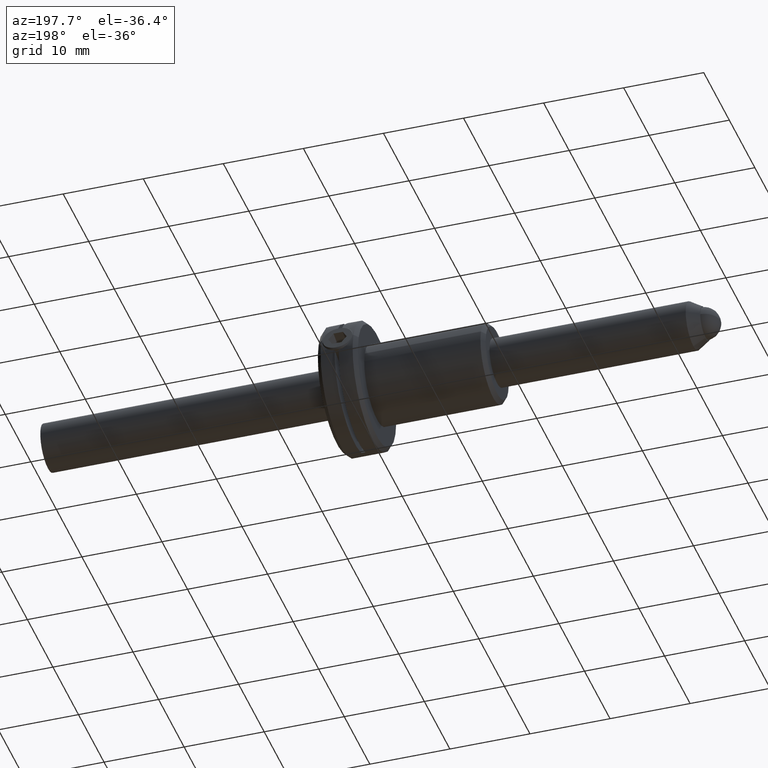
[diagram: clean part render]
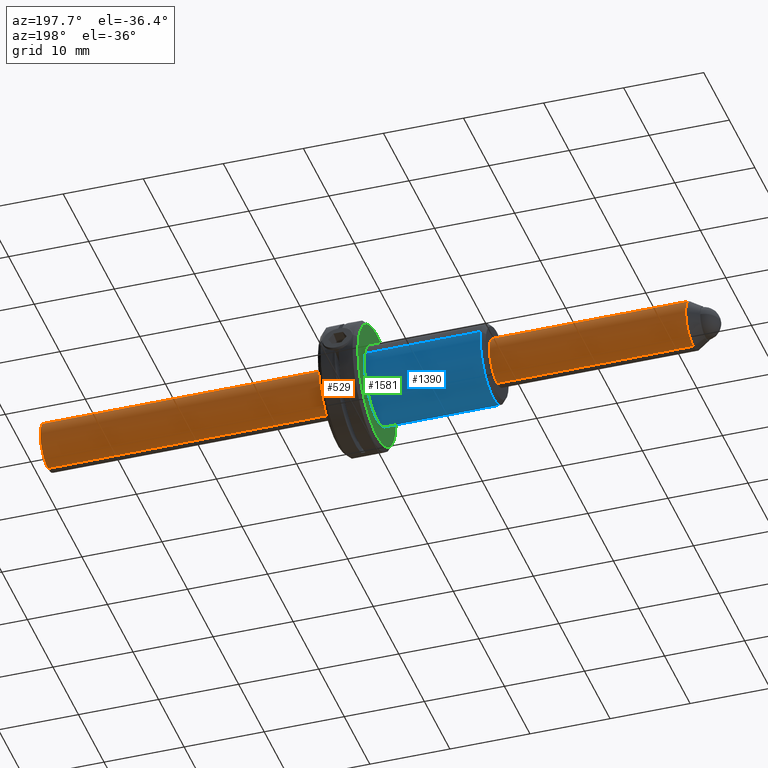
[diagram: same view with three faces highlighted in distinct colors, each labeled with its STEP entity id]
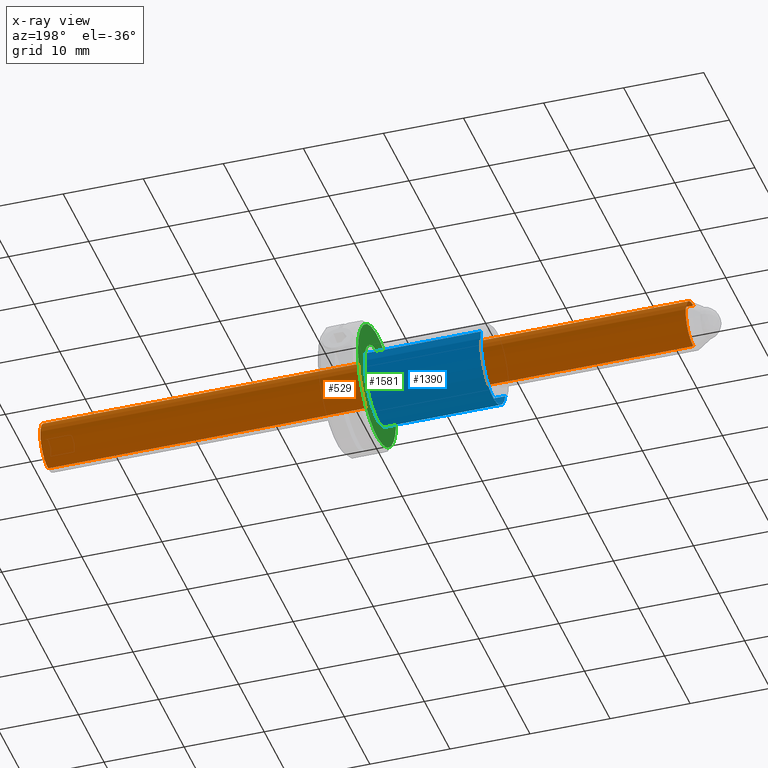
[diagram: x-ray of the same camera — body ghosted, the three highlighted faces saturated]
A machine part, auxiliary view with three faces highlighted in distinct colors.
The next image is the same camera in x-ray (body ghosted, the three faces saturated) — at least one of them is partly hidden behind the body in this view.
Their STEP definitions:

[orange] entity #529 — the highlighted cylindrical surface (edge-blend (fillet) strip) has radius 3 mm, axis along (-1, -0, -0).
#87 = VECTOR ( 'NONE', #263, 1000.000000000000000 ) ;
#198 = DIRECTION ( 'NONE',  ( -1.000000000000000000, -0.000000000000000000, -0.000000000000000000 ) ) ;
#263 = DIRECTION ( 'NONE',  ( -1.000000000000000000, -0.000000000000000000, -0.000000000000000000 ) ) ;
#426 = VERTEX_POINT ( 'NONE', #1914 ) ;
#480 = AXIS2_PLACEMENT_3D ( 'NONE', #774, #593, #1261 ) ;
#493 = ORIENTED_EDGE ( 'NONE', *, *, #1269, .F. ) ;
#499 = ORIENTED_EDGE ( 'NONE', *, *, #1294, .F. ) ;
#529 = ADVANCED_FACE ( 'NONE', ( #1344 ), #1491, .T. ) ;
#538 = VERTEX_POINT ( 'NONE', #1954 ) ;
#593 = DIRECTION ( 'NONE',  ( -1.000000000000000000, -0.000000000000000000, -0.000000000000000000 ) ) ;
#655 = DIRECTION ( 'NONE',  ( 0.000000000000000000, 0.000000000000000000, 1.000000000000000000 ) ) ;
#681 = VECTOR ( 'NONE', #198, 1000.000000000000000 ) ;
#774 = CARTESIAN_POINT ( 'NONE',  ( 41.04999999999999005, 0.000000000000000000, 0.000000000000000000 ) ) ;
#820 = ORIENTED_EDGE ( 'NONE', *, *, #1086, .T. ) ;
#847 = CIRCLE ( 'NONE', #480, 3.000000000000000000 ) ;
#982 = AXIS2_PLACEMENT_3D ( 'NONE', #1866, #1709, #655 ) ;
#1049 = DIRECTION ( 'NONE',  ( 0.000000000000000000, 0.000000000000000000, 1.000000000000000000 ) ) ;
#1086 = EDGE_CURVE ( 'NONE', #426, #538, #847, .T. ) ;
#1234 = CARTESIAN_POINT ( 'NONE',  ( -39.54999999999999716, 0.000000000000000000, -3.000000000000000000 ) ) ;
#1255 = CARTESIAN_POINT ( 'NONE',  ( -45.53911735205616651, 0.000000000000000000, 3.000000000000000000 ) ) ;
#1261 = DIRECTION ( 'NONE',  ( 0.000000000000000000, 0.000000000000000000, 1.000000000000000000 ) ) ;
#1269 = EDGE_CURVE ( 'NONE', #1637, #1546, #1949, .T. ) ;
#1294 = EDGE_CURVE ( 'NONE', #426, #1637, #1729, .T. ) ;
#1344 = FACE_OUTER_BOUND ( 'NONE', #1465, .T. ) ;
#1346 = LINE ( 'NONE', #1505, #87 ) ;
#1391 = CARTESIAN_POINT ( 'NONE',  ( -39.54999999999999716, 3.673940397442059868E-16, 3.000000000000000000 ) ) ;
#1465 = EDGE_LOOP ( 'NONE', ( #820, #1615, #493, #499 ) ) ;
#1491 = CYLINDRICAL_SURFACE ( 'NONE', #1816, 3.000000000000000000 ) ;
#1505 = CARTESIAN_POINT ( 'NONE',  ( -45.53911735205616651, 3.673940397442059868E-16, -3.000000000000000000 ) ) ;
#1530 = CARTESIAN_POINT ( 'NONE',  ( -45.53911735205616651, 0.000000000000000000, 0.000000000000000000 ) ) ;
#1546 = VERTEX_POINT ( 'NONE', #1234 ) ;
#1615 = ORIENTED_EDGE ( 'NONE', *, *, #1859, .T. ) ;
#1637 = VERTEX_POINT ( 'NONE', #1391 ) ;
#1709 = DIRECTION ( 'NONE',  ( -1.000000000000000000, -0.000000000000000000, -0.000000000000000000 ) ) ;
#1729 = LINE ( 'NONE', #1255, #681 ) ;
#1816 = AXIS2_PLACEMENT_3D ( 'NONE', #1530, #1825, #1049 ) ;
#1825 = DIRECTION ( 'NONE',  ( -1.000000000000000000, -0.000000000000000000, -0.000000000000000000 ) ) ;
#1859 = EDGE_CURVE ( 'NONE', #538, #1546, #1346, .T. ) ;
#1866 = CARTESIAN_POINT ( 'NONE',  ( -39.54999999999999716, 0.000000000000000000, 0.000000000000000000 ) ) ;
#1914 = CARTESIAN_POINT ( 'NONE',  ( 41.04999999999999005, 0.000000000000000000, 3.000000000000000000 ) ) ;
#1949 = CIRCLE ( 'NONE', #982, 3.000000000000000000 ) ;
#1954 = CARTESIAN_POINT ( 'NONE',  ( 41.04999999999999005, 3.673940397442059868E-16, -3.000000000000000000 ) ) ;

[blue] entity #1390 — the highlighted cylindrical surface (partial cylindrical patch) has radius 5 mm, axis along (-1, 0, 0).
#53 = CARTESIAN_POINT ( 'NONE',  ( -0.04999999999999709538, 4.796282854146715735, 1.412682123840400372 ) ) ;
#75 = ORIENTED_EDGE ( 'NONE', *, *, #1895, .T. ) ;
#103 = CARTESIAN_POINT ( 'NONE',  ( -0.04999999999999709538, -4.796282854146718400, -1.412682123840401704 ) ) ;
#117 = CYLINDRICAL_SURFACE ( 'NONE', #1341, 5.000000000000000000 ) ;
#209 = ORIENTED_EDGE ( 'NONE', *, *, #1018, .T. ) ;
#279 = ORIENTED_EDGE ( 'NONE', *, *, #737, .F. ) ;
#290 = CARTESIAN_POINT ( 'NONE',  ( -14.55000000000000071, -4.796282854146716623, -1.412682123840401260 ) ) ;
#424 = VECTOR ( 'NONE', #909, 1000.000000000000000 ) ;
#433 = DIRECTION ( 'NONE',  ( 0.000000000000000000, -0.9592565708293433469, -0.2825364247680801078 ) ) ;
#450 = DIRECTION ( 'NONE',  ( 1.000000000000000000, 0.000000000000000000, 0.000000000000000000 ) ) ;
#620 = CARTESIAN_POINT ( 'NONE',  ( -14.55000000000000071, 4.796282854146714847, 1.412682123840400150 ) ) ;
#626 = LINE ( 'NONE', #1676, #424 ) ;
#648 = CIRCLE ( 'NONE', #1563, 5.000000000000000000 ) ;
#657 = LINE ( 'NONE', #972, #1339 ) ;
#737 = EDGE_CURVE ( 'NONE', #1252, #1093, #657, .T. ) ;
#857 = DIRECTION ( 'NONE',  ( -1.000000000000000000, 0.000000000000000000, 0.000000000000000000 ) ) ;
#879 = CIRCLE ( 'NONE', #1786, 5.000000000000000888 ) ;
#902 = CARTESIAN_POINT ( 'NONE',  ( -0.04999999999999709538, -5.426736848533666609E-16, -7.892009290543411720E-16 ) ) ;
#909 = DIRECTION ( 'NONE',  ( -1.000000000000000000, 0.000000000000000000, 0.000000000000000000 ) ) ;
#972 = CARTESIAN_POINT ( 'NONE',  ( -32.40644179797200763, 4.796282854146715735, 1.412682123840400372 ) ) ;
#1009 = EDGE_LOOP ( 'NONE', ( #279, #209, #75, #1137 ) ) ;
#1018 = EDGE_CURVE ( 'NONE', #1252, #1832, #879, .T. ) ;
#1038 = FACE_OUTER_BOUND ( 'NONE', #1009, .T. ) ;
#1084 = DIRECTION ( 'NONE',  ( 0.000000000000000000, 0.9592565708293433469, 0.2825364247680801078 ) ) ;
#1093 = VERTEX_POINT ( 'NONE', #620 ) ;
#1137 = ORIENTED_EDGE ( 'NONE', *, *, #1514, .T. ) ;
#1145 = CARTESIAN_POINT ( 'NONE',  ( -32.40644179797200763, -5.426736848533666609E-16, -7.892009290543411720E-16 ) ) ;
#1157 = DIRECTION ( 'NONE',  ( 0.000000000000000000, -0.9592565708293433469, -0.2825364247680801078 ) ) ;
#1252 = VERTEX_POINT ( 'NONE', #53 ) ;
#1339 = VECTOR ( 'NONE', #1768, 1000.000000000000000 ) ;
#1341 = AXIS2_PLACEMENT_3D ( 'NONE', #1145, #857, #1157 ) ;
#1390 = ADVANCED_FACE ( 'NONE', ( #1038 ), #117, .T. ) ;
#1514 = EDGE_CURVE ( 'NONE', #1907, #1093, #648, .T. ) ;
#1563 = AXIS2_PLACEMENT_3D ( 'NONE', #1838, #450, #1084 ) ;
#1676 = CARTESIAN_POINT ( 'NONE',  ( -32.40644179797200763, -4.796282854146717511, -1.412682123840401482 ) ) ;
#1768 = DIRECTION ( 'NONE',  ( -1.000000000000000000, 0.000000000000000000, 0.000000000000000000 ) ) ;
#1786 = AXIS2_PLACEMENT_3D ( 'NONE', #902, #1806, #433 ) ;
#1806 = DIRECTION ( 'NONE',  ( -1.000000000000000000, 0.000000000000000000, 0.000000000000000000 ) ) ;
#1832 = VERTEX_POINT ( 'NONE', #103 ) ;
#1838 = CARTESIAN_POINT ( 'NONE',  ( -14.55000000000000071, -5.426736848533666609E-16, -7.892009290543411720E-16 ) ) ;
#1895 = EDGE_CURVE ( 'NONE', #1832, #1907, #626, .T. ) ;
#1907 = VERTEX_POINT ( 'NONE', #290 ) ;

[green] entity #1581 — the highlighted planar face has unit normal (1, 0, -0).
#53 = CARTESIAN_POINT ( 'NONE',  ( -0.04999999999999709538, 4.796282854146715735, 1.412682123840400372 ) ) ;
#89 = EDGE_CURVE ( 'NONE', #1839, #503, #324, .T. ) ;
#103 = CARTESIAN_POINT ( 'NONE',  ( -0.04999999999999709538, -4.796282854146718400, -1.412682123840401704 ) ) ;
#264 = ORIENTED_EDGE ( 'NONE', *, *, #89, .T. ) ;
#274 = DIRECTION ( 'NONE',  ( -1.000000000000000000, -0.000000000000000000, -0.000000000000000000 ) ) ;
#324 = CIRCLE ( 'NONE', #770, 7.499999999999998224 ) ;
#334 = EDGE_CURVE ( 'NONE', #503, #1839, #448, .T. ) ;
#374 = CARTESIAN_POINT ( 'NONE',  ( -0.04999999999999969746, -5.426736848533666609E-16, -7.892009290543411720E-16 ) ) ;
#398 = CIRCLE ( 'NONE', #1434, 5.000000000000000888 ) ;
#414 = DIRECTION ( 'NONE',  ( 1.000000000000000000, 0.000000000000000000, -0.000000000000000000 ) ) ;
#419 = AXIS2_PLACEMENT_3D ( 'NONE', #374, #507, #1903 ) ;
#433 = DIRECTION ( 'NONE',  ( 0.000000000000000000, -0.9592565708293433469, -0.2825364247680801078 ) ) ;
#447 = CARTESIAN_POINT ( 'NONE',  ( -0.04999999999999969746, -5.426736848533666609E-16, -7.892009290543411720E-16 ) ) ;
#448 = CIRCLE ( 'NONE', #419, 7.499999999999998224 ) ;
#503 = VERTEX_POINT ( 'NONE', #1504 ) ;
#507 = DIRECTION ( 'NONE',  ( -1.000000000000000000, -0.000000000000000000, -0.000000000000000000 ) ) ;
#594 = DIRECTION ( 'NONE',  ( -1.000000000000000000, 0.000000000000000000, 0.000000000000000000 ) ) ;
#705 = CARTESIAN_POINT ( 'NONE',  ( -0.04999999999999969746, 7.194424281220072714, 2.119023185760599226 ) ) ;
#728 = FACE_BOUND ( 'NONE', #1987, .T. ) ;
#770 = AXIS2_PLACEMENT_3D ( 'NONE', #447, #274, #1534 ) ;
#879 = CIRCLE ( 'NONE', #1786, 5.000000000000000888 ) ;
#888 = DIRECTION ( 'NONE',  ( 0.000000000000000000, -0.9592565708293433469, -0.2825364247680801078 ) ) ;
#897 = ORIENTED_EDGE ( 'NONE', *, *, #1018, .F. ) ;
#902 = CARTESIAN_POINT ( 'NONE',  ( -0.04999999999999709538, -5.426736848533666609E-16, -7.892009290543411720E-16 ) ) ;
#937 = EDGE_LOOP ( 'NONE', ( #264, #1521 ) ) ;
#1018 = EDGE_CURVE ( 'NONE', #1252, #1832, #879, .T. ) ;
#1028 = ORIENTED_EDGE ( 'NONE', *, *, #1549, .F. ) ;
#1045 = DIRECTION ( 'NONE',  ( 0.000000000000000000, 0.9592565708293433469, 0.2825364247680801078 ) ) ;
#1252 = VERTEX_POINT ( 'NONE', #53 ) ;
#1434 = AXIS2_PLACEMENT_3D ( 'NONE', #1845, #594, #888 ) ;
#1504 = CARTESIAN_POINT ( 'NONE',  ( -0.04999999999999969746, -7.194424281220074491, -2.119023185760600114 ) ) ;
#1508 = FACE_OUTER_BOUND ( 'NONE', #937, .T. ) ;
#1516 = CARTESIAN_POINT ( 'NONE',  ( -0.04999999999999969746, -2.260291398144641306, 7.674052566634745887 ) ) ;
#1521 = ORIENTED_EDGE ( 'NONE', *, *, #334, .T. ) ;
#1534 = DIRECTION ( 'NONE',  ( 0.000000000000000000, 0.9592565708293433469, 0.2825364247680801078 ) ) ;
#1549 = EDGE_CURVE ( 'NONE', #1832, #1252, #398, .T. ) ;
#1581 = ADVANCED_FACE ( 'NONE', ( #1508, #728 ), #1807, .F. ) ;
#1696 = AXIS2_PLACEMENT_3D ( 'NONE', #1516, #414, #1045 ) ;
#1786 = AXIS2_PLACEMENT_3D ( 'NONE', #902, #1806, #433 ) ;
#1806 = DIRECTION ( 'NONE',  ( -1.000000000000000000, 0.000000000000000000, 0.000000000000000000 ) ) ;
#1807 = PLANE ( 'NONE',  #1696 ) ;
#1832 = VERTEX_POINT ( 'NONE', #103 ) ;
#1839 = VERTEX_POINT ( 'NONE', #705 ) ;
#1845 = CARTESIAN_POINT ( 'NONE',  ( -0.04999999999999709538, -5.426736848533666609E-16, -7.892009290543411720E-16 ) ) ;
#1903 = DIRECTION ( 'NONE',  ( 0.000000000000000000, 0.9592565708293433469, 0.2825364247680801078 ) ) ;
#1987 = EDGE_LOOP ( 'NONE', ( #1028, #897 ) ) ;